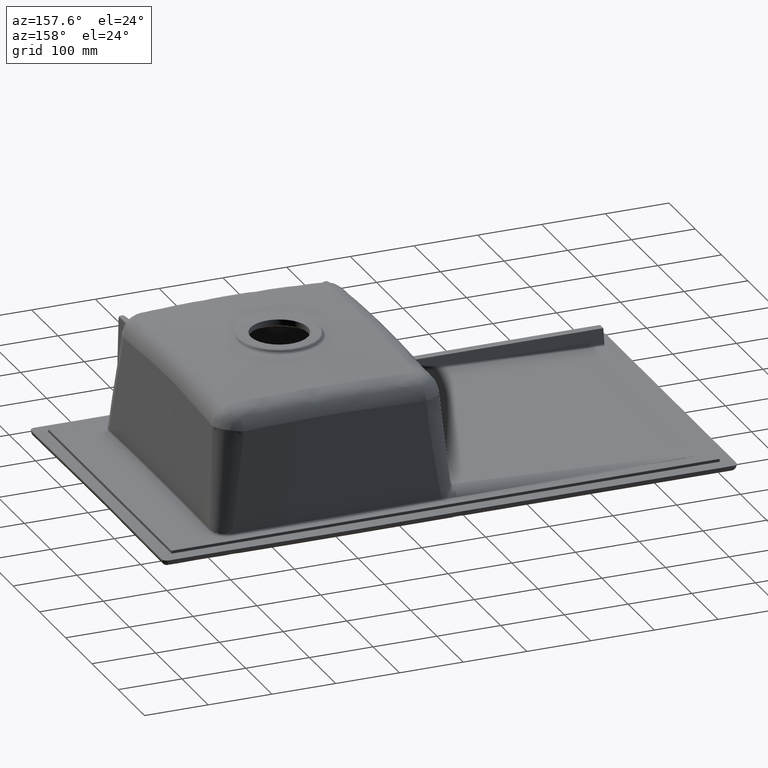
[diagram: clean part render]
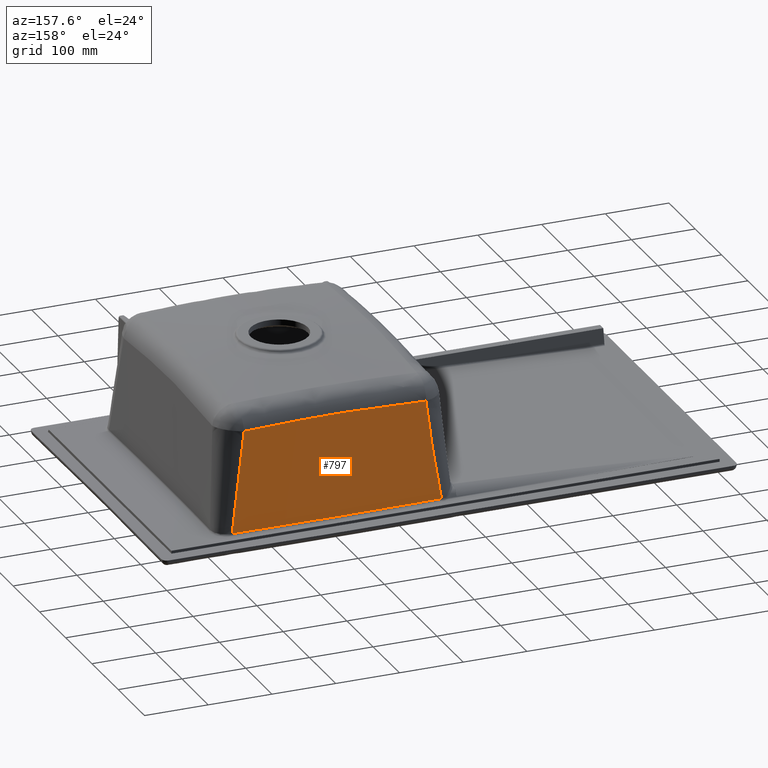
[diagram: same view with one face highlighted and labeled with its STEP entity id]
A machine part, auxiliary view. The second image highlights one B-rep face of the part: STEP entity #797.
In plain terms, the highlighted conical surface has half-angle 5 deg.
Its self-contained STEP definition (entity closure, byte-faithful):
#261=(
BOUNDED_CURVE()
B_SPLINE_CURVE(3,(#7955,#7956,#7957,#7958),.UNSPECIFIED.,.F.,.F.)
B_SPLINE_CURVE_WITH_KNOTS((4,4),(0.,1.),.UNSPECIFIED.)
CURVE()
GEOMETRIC_REPRESENTATION_ITEM()
RATIONAL_B_SPLINE_CURVE((1.,1.,1.,1.))
REPRESENTATION_ITEM('')
);
#525=CONICAL_SURFACE('',#4335,10340.0300590954,5.);
#797=ADVANCED_FACE('',(#1103),#525,.T.);
#1103=FACE_OUTER_BOUND('',#1375,.T.);
#1375=EDGE_LOOP('',(#2002,#2003,#2004,#2005,#2006,#2007,#2008,#2009));
#2002=ORIENTED_EDGE('',*,*,#3474,.F.);
#2003=ORIENTED_EDGE('',*,*,#3475,.F.);
#2004=ORIENTED_EDGE('',*,*,#3470,.T.);
#2005=ORIENTED_EDGE('',*,*,#3473,.T.);
#2006=ORIENTED_EDGE('',*,*,#3472,.T.);
#2007=ORIENTED_EDGE('',*,*,#3396,.T.);
#2008=ORIENTED_EDGE('',*,*,#3476,.F.);
#2009=ORIENTED_EDGE('',*,*,#3477,.F.);
#2951=VERTEX_POINT('',#6846);
#2952=VERTEX_POINT('',#6848);
#2992=VERTEX_POINT('',#7819);
#2993=VERTEX_POINT('',#7820);
#2994=VERTEX_POINT('',#7829);
#2995=VERTEX_POINT('',#7953);
#2996=VERTEX_POINT('',#7954);
#2997=VERTEX_POINT('',#7963);
#3396=EDGE_CURVE('',#2951,#2952,#3929,.T.);
#3470=EDGE_CURVE('',#2992,#2993,#3955,.T.);
#3472=EDGE_CURVE('',#2994,#2951,#3956,.T.);
#3473=EDGE_CURVE('',#2993,#2994,#3957,.T.);
#3474=EDGE_CURVE('',#2995,#2996,#3958,.T.);
#3475=EDGE_CURVE('',#2992,#2995,#261,.T.);
#3476=EDGE_CURVE('',#2997,#2952,#3959,.T.);
#3477=EDGE_CURVE('',#2996,#2997,#3960,.T.);
#3929=B_SPLINE_CURVE_WITH_KNOTS('',3,(#6849,#6850,#6851,#6852,#6853,#6854,
#6855,#6856,#6857,#6858,#6859,#6860),.UNSPECIFIED.,.F.,.F.,(4,2,2,2,2,4),
(0.,0.25,0.375,0.4375,0.5,1.),.UNSPECIFIED.);
#3955=B_SPLINE_CURVE_WITH_KNOTS('',3,(#7815,#7816,#7817,#7818),
 .UNSPECIFIED.,.F.,.F.,(4,4),(0.,1.),.UNSPECIFIED.);
#3956=B_SPLINE_CURVE_WITH_KNOTS('',3,(#7825,#7826,#7827,#7828),
 .UNSPECIFIED.,.F.,.F.,(4,4),(0.,1.),.UNSPECIFIED.);
#3957=B_SPLINE_CURVE_WITH_KNOTS('',3,(#7830,#7831,#7832,#7833,#7834,#7835,
#7836,#7837,#7838,#7839,#7840,#7841,#7842,#7843,#7844,#7845,#7846,#7847,
#7848,#7849,#7850,#7851,#7852,#7853,#7854,#7855,#7856,#7857,#7858,#7859,
#7860,#7861,#7862,#7863,#7864,#7865,#7866,#7867,#7868),.UNSPECIFIED.,.F.,
 .F.,(4,2,1,1,1,2,2,1,1,1,1,1,2,2,2,1,1,1,1,2,2,1,1,1,2,2,4),(0.,0.249999999999977,
0.374999999999965,0.437499999999959,0.468749999999956,0.484374999999954,
0.499999999999953,0.562499999999946,0.593749999999943,0.609374999999941,
0.61718749999994,0.62109374999994,0.623046874999939,0.624999999999939,0.687499999999935,
0.718749999999933,0.734374999999931,0.742187499999931,0.746093749999931,
0.748046874999932,0.749999999999932,0.812499999999949,0.843749999999957,
0.859374999999961,0.867187499999963,0.874999999999964,1.),.UNSPECIFIED.);
#3958=B_SPLINE_CURVE_WITH_KNOTS('',3,(#7949,#7950,#7951,#7952),
 .UNSPECIFIED.,.F.,.F.,(4,4),(0.,1.),.UNSPECIFIED.);
#3959=B_SPLINE_CURVE_WITH_KNOTS('',3,(#7959,#7960,#7961,#7962),
 .UNSPECIFIED.,.F.,.F.,(4,4),(0.,1.),.UNSPECIFIED.);
#3960=B_SPLINE_CURVE_WITH_KNOTS('',3,(#7964,#7965,#7966,#7967),
 .UNSPECIFIED.,.F.,.F.,(4,4),(0.,1.),.UNSPECIFIED.);
#4335=AXIS2_PLACEMENT_3D('',#7968,#4784,#4785);
#4784=DIRECTION('',(0.,0.,-1.));
#4785=DIRECTION('',(-1.,0.,-4.47092876618273E-18));
#6846=CARTESIAN_POINT('',(-146.149643584101,204.653190871021,169.917939846857));
#6848=CARTESIAN_POINT('',(139.533931219869,204.715885834535,170.247513964095));
#6849=CARTESIAN_POINT('',(-146.14963258995,204.653190895263,169.917938940844));
#6850=CARTESIAN_POINT('',(-119.105608259794,204.91654885726,171.283425533233));
#6851=CARTESIAN_POINT('',(-93.6775535510614,205.080339603575,172.315215571543));
#6852=CARTESIAN_POINT('',(-57.9598677984066,205.230419568526,173.36235579789));
#6853=CARTESIAN_POINT('',(-46.4580319142966,205.264440645618,173.627978401486));
#6854=CARTESIAN_POINT('',(-29.8113724105702,205.297540961678,173.9012760991));
#6855=CARTESIAN_POINT('',(-24.3635013375711,205.305581398724,173.971519297009));
#6856=CARTESIAN_POINT('',(-13.6697878129172,205.31663569488,174.070293623566));
#6857=CARTESIAN_POINT('',(-8.47681130891282,205.319639663938,174.098745886405));
#6858=CARTESIAN_POINT('',(38.3024534759239,205.328390969383,174.168531524852));
#6859=CARTESIAN_POINT('',(85.9070413916837,205.210132120934,172.882202877177));
#6860=CARTESIAN_POINT('',(139.533931219699,204.715885837004,170.247513903207));
#7815=CARTESIAN_POINT('',(-164.847207324853,217.730904250617,17.2395285257024));
#7816=CARTESIAN_POINT('',(-164.444506783771,217.510980454926,19.8263415134556));
#7817=CARTESIAN_POINT('',(-164.041832082993,217.291033129712,22.4131545012089));
#7818=CARTESIAN_POINT('',(-163.639183225268,217.071062279489,24.9999674889621));
#7819=CARTESIAN_POINT('',(-164.847098123346,217.730940886003,17.2394399375151));
#7820=CARTESIAN_POINT('',(-163.639185375151,217.07121657387,24.9999809340873));
#7825=CARTESIAN_POINT('',(-146.828318658339,205.511355898855,160.000002088522));
#7826=CARTESIAN_POINT('',(-146.584598754733,205.225662862399,163.304768878646));
#7827=CARTESIAN_POINT('',(-146.358017558144,204.939605541153,166.610818471953));
#7828=CARTESIAN_POINT('',(-146.149654915481,204.653190459452,169.917940309703));
#7829=CARTESIAN_POINT('',(-146.829691653108,205.511265202387,160.000093006609));
#7830=CARTESIAN_POINT('',(-163.639181947839,217.071062318055,24.9999672793276));
#7831=CARTESIAN_POINT('',(-161.627345830119,215.977233627273,37.8649135994558));
#7832=CARTESIAN_POINT('',(-159.811626285978,214.952083417621,49.9029442729744));
#7833=CARTESIAN_POINT('',(-157.381792021606,213.517839976394,66.7196168133381));
#7834=CARTESIAN_POINT('',(-156.240312267869,212.826587153281,74.8178597160414));
#7835=CARTESIAN_POINT('',(-155.037019080789,212.065481062091,83.7231463761078));
#7836=CARTESIAN_POINT('',(-154.467471389449,211.696276287434,88.0401238578691));
#7837=CARTESIAN_POINT('',(-154.23025687222,211.540478418584,89.8611858111371));
#7838=CARTESIAN_POINT('',(-154.073642053709,211.437153888706,91.0687668348267));
#7839=CARTESIAN_POINT('',(-154.000738732205,211.388851400586,91.6332288287869));
#7840=CARTESIAN_POINT('',(-153.593642428435,211.117796822385,94.8003718887651));
#7841=CARTESIAN_POINT('',(-153.081381950584,210.767280734984,98.893312197701));
#7842=CARTESIAN_POINT('',(-152.442212666727,210.31414438391,104.180054339476));
#7843=CARTESIAN_POINT('',(-152.112247974385,210.076524303754,106.951336689035));
#7844=CARTESIAN_POINT('',(-151.944670993742,209.954951074496,108.368955683482));
#7845=CARTESIAN_POINT('',(-151.860233892995,209.893473635512,109.085759635622));
#7846=CARTESIAN_POINT('',(-151.823907581364,209.866978124946,109.394674426879));
#7847=CARTESIAN_POINT('',(-151.799659155808,209.849281553862,109.600998309379));
#7848=CARTESIAN_POINT('',(-151.792255982263,209.843877553779,109.664003097109));
#7849=CARTESIAN_POINT('',(-151.234833894169,209.436594285377,114.412377296835));
#7850=CARTESIAN_POINT('',(-150.806886578119,209.122816683994,118.069895698353));
#7851=CARTESIAN_POINT('',(-150.33374892546,208.773958845311,122.135724794214));
#7852=CARTESIAN_POINT('',(-150.139376675001,208.629981549247,123.813527215541));
#7853=CARTESIAN_POINT('',(-149.986440924122,208.51530668165,125.149517152199));
#7854=CARTESIAN_POINT('',(-149.928430088193,208.471294539628,125.662150565139));
#7855=CARTESIAN_POINT('',(-149.904038830287,208.45261985908,125.879626882761));
#7856=CARTESIAN_POINT('',(-149.894574173636,208.445330299998,125.964508078418));
#7857=CARTESIAN_POINT('',(-149.888484121545,208.440629233533,126.019245999863));
#7858=CARTESIAN_POINT('',(-149.890799415748,208.442431364389,125.998265721008));
#7859=CARTESIAN_POINT('',(-149.624299064703,208.235678522153,128.405413985772));
#7860=CARTESIAN_POINT('',(-149.221305883703,207.901966443125,132.286036362933));
#7861=CARTESIAN_POINT('',(-148.72429213944,207.454913211271,137.47723180419));
#7862=CARTESIAN_POINT('',(-148.469074047602,207.216955136391,140.238780191794));
#7863=CARTESIAN_POINT('',(-148.358257024226,207.111880557463,141.457861786548));
#7864=CARTESIAN_POINT('',(-148.284059519813,207.041143595254,142.27848526243));
#7865=CARTESIAN_POINT('',(-148.24393285697,207.002667763982,142.724804983361));
#7866=CARTESIAN_POINT('',(-147.656581853809,206.436703755659,149.289480341734));
#7867=CARTESIAN_POINT('',(-147.197161983046,205.950666039293,154.919224497188));
#7868=CARTESIAN_POINT('',(-146.831065032023,205.511299979747,160.000194823747));
#7949=CARTESIAN_POINT('',(163.69515830532,217.749298680656,17.2385327497478));
#7950=CARTESIAN_POINT('',(163.286706202673,217.529391410412,19.8256893210639));
#7951=CARTESIAN_POINT('',(162.878250255047,217.309460480894,22.412845079965));
#7952=CARTESIAN_POINT('',(162.46979045981,217.089505886231,25.0000000260227));
#7953=CARTESIAN_POINT('',(163.695158397872,217.749298675977,17.2385327743784));
#7954=CARTESIAN_POINT('',(162.469790479204,217.089505883695,25.0000000240251));
#7955=CARTESIAN_POINT('',(-164.847087737488,217.730993326191,17.2385328522835));
#7956=CARTESIAN_POINT('',(-55.3331269636235,219.47739582082,17.2385328694471));
#7957=CARTESIAN_POINT('',(54.1809923305151,219.483492524772,17.2385328707634));
#7958=CARTESIAN_POINT('',(163.695158434644,217.749298667184,17.2385328519727));
#7959=CARTESIAN_POINT('',(141.152379932729,205.590510548506,160.00000000029));
#7960=CARTESIAN_POINT('',(140.612903815238,205.299010415974,163.415839407121));
#7961=CARTESIAN_POINT('',(140.073420910615,205.007468851153,166.831677383977));
#7962=CARTESIAN_POINT('',(139.533931212804,204.715885840527,170.247513929871));
#7963=CARTESIAN_POINT('',(141.15237973517,205.590510548698,159.999999974054));
#7964=CARTESIAN_POINT('',(162.469790498673,217.089505885933,25.0000000224451));
#7965=CARTESIAN_POINT('',(155.36515552253,213.26367743068,70.0002466679609));
#7966=CARTESIAN_POINT('',(148.259356484509,209.430689287674,115.000247394668));
#7967=CARTESIAN_POINT('',(141.152379537741,205.590510558424,159.999999948652));
#7968=CARTESIAN_POINT('',(6.02182823036656E-11,-10119.5833333221,1.22018039846721));